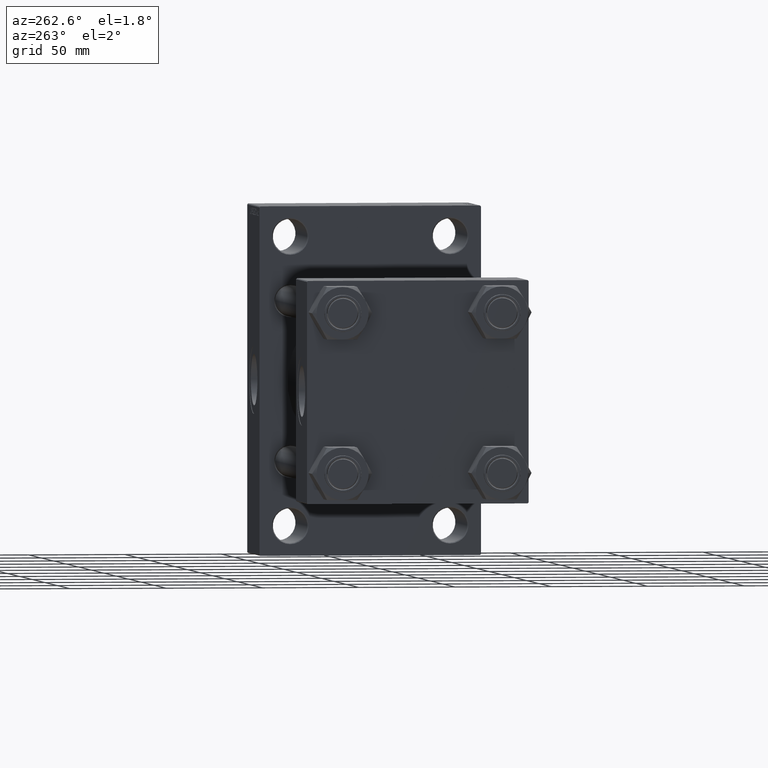
[diagram: clean part render]
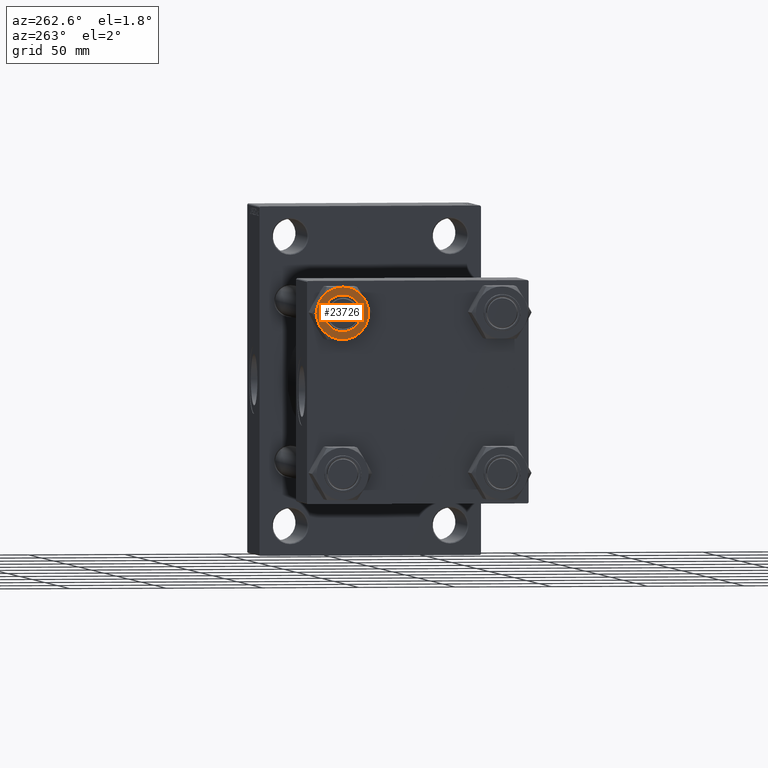
[diagram: same view with one face highlighted and labeled with its STEP entity id]
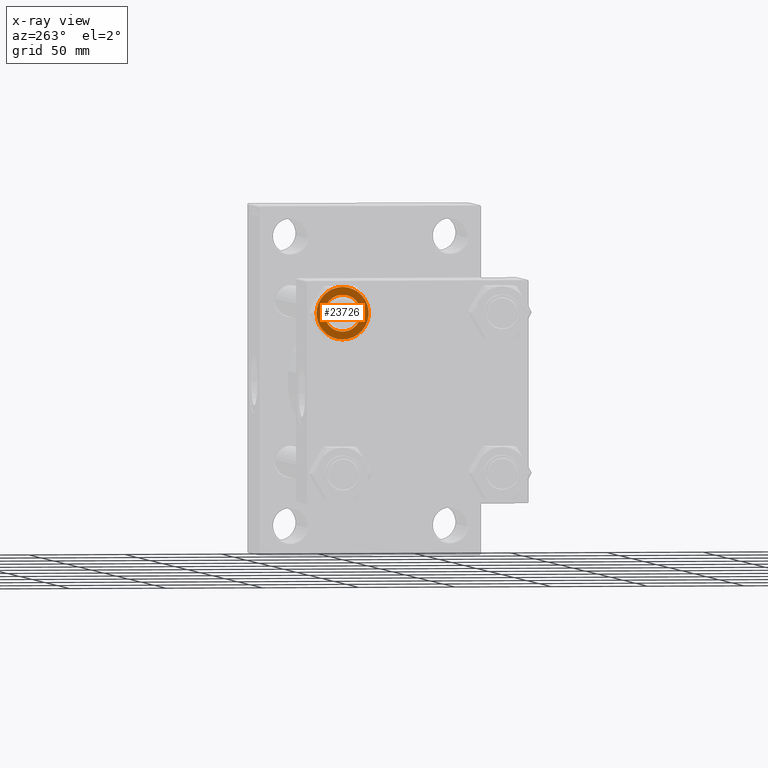
[diagram: x-ray of the same camera — body ghosted, the highlighted face saturated]
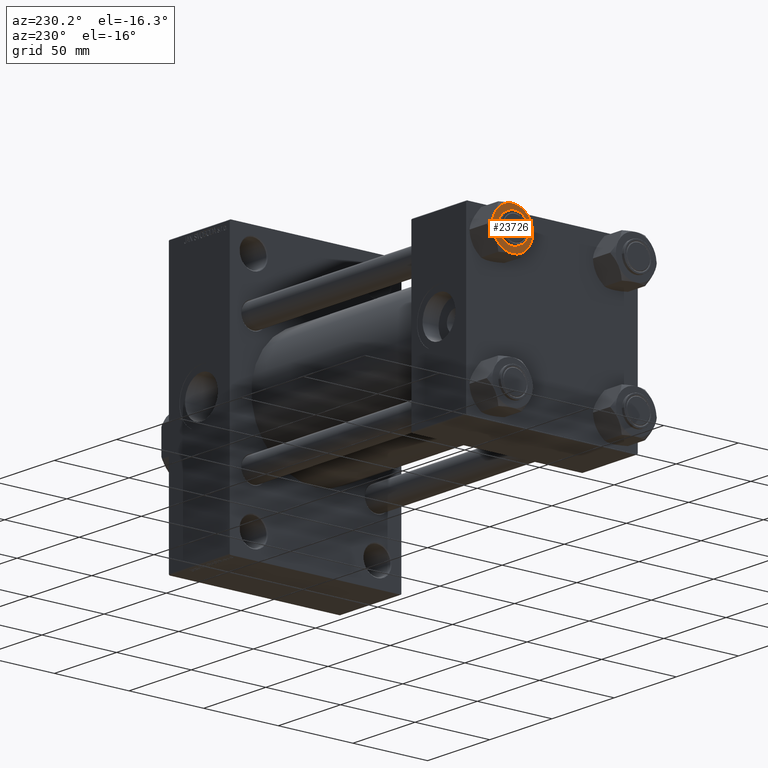
[diagram: same view with one face highlighted and labeled with its STEP entity id]
A machine part, auxiliary view. The second image highlights one B-rep face of the part: STEP entity #23726.
The next image is the same camera in x-ray: the body ghosted, the highlighted face saturated — about 0% of this face is hidden behind the body in this view.
A second angle (auxiliary view) of the same face is appended — the face is thin or edge-on in the first view.
In plain terms, the highlighted planar face has unit normal (1, 0, 0).
Its self-contained STEP definition (entity closure, byte-faithful):
#627 = CIRCLE ( 'NONE', #31573, 13.52731680711293727 ) ;
#777 = DIRECTION ( 'NONE',  ( -1.000000000000000000, 0.000000000000000000, 0.000000000000000000 ) ) ;
#1016 = EDGE_CURVE ( 'NONE', #26608, #1909, #40636, .T. ) ;
#1672 = ORIENTED_EDGE ( 'NONE', *, *, #39224, .F. ) ;
#1712 = VERTEX_POINT ( 'NONE', #45258 ) ;
#1909 = VERTEX_POINT ( 'NONE', #2358 ) ;
#2307 = CARTESIAN_POINT ( 'NONE',  ( 0.000000000000000000, 0.000000000000000000, 0.000000000000000000 ) ) ;
#2358 = CARTESIAN_POINT ( 'NONE',  ( -11.71500000000000874, -6.763658403556459753, 0.000000000000000000 ) ) ;
#2512 = CIRCLE ( 'NONE', #24942, 13.52731680711293727 ) ;
#2837 = CARTESIAN_POINT ( 'NONE',  ( -1.502314598737160017E-15, 13.52731680711293727, 0.000000000000000000 ) ) ;
#3008 = AXIS2_PLACEMENT_3D ( 'NONE', #19177, #19418, #777 ) ;
#3323 = CARTESIAN_POINT ( 'NONE',  ( 0.000000000000000000, 0.000000000000000000, 0.000000000000000000 ) ) ;
#3395 = EDGE_CURVE ( 'NONE', #38280, #1712, #26024, .T. ) ;
#3640 = AXIS2_PLACEMENT_3D ( 'NONE', #45452, #12277, #41818 ) ;
#3699 = AXIS2_PLACEMENT_3D ( 'NONE', #27950, #29626, #21160 ) ;
#4208 = AXIS2_PLACEMENT_3D ( 'NONE', #22141, #36942, #18525 ) ;
#4371 = ORIENTED_EDGE ( 'NONE', *, *, #11609, .F. ) ;
#5560 = CARTESIAN_POINT ( 'NONE',  ( 0.000000000000000000, 0.000000000000000000, 0.000000000000000000 ) ) ;
#7023 = CARTESIAN_POINT ( 'NONE',  ( 13.52731680711293727, 0.000000000000000000, 0.000000000000000000 ) ) ;
#7979 = VERTEX_POINT ( 'NONE', #44545 ) ;
#8413 = AXIS2_PLACEMENT_3D ( 'NONE', #2307, #47339, #39127 ) ;
#9207 = FACE_OUTER_BOUND ( 'NONE', #27499, .T. ) ;
#9687 = EDGE_CURVE ( 'NONE', #23565, #17484, #627, .T. ) ;
#10123 = EDGE_LOOP ( 'NONE', ( #16457, #27343 ) ) ;
#11609 = EDGE_CURVE ( 'NONE', #1712, #26608, #32399, .T. ) ;
#11998 = ORIENTED_EDGE ( 'NONE', *, *, #23335, .T. ) ;
#12277 = DIRECTION ( 'NONE',  ( 0.000000000000000000, -0.000000000000000000, -1.000000000000000000 ) ) ;
#12785 = VERTEX_POINT ( 'NONE', #23725 ) ;
#13306 = PLANE ( 'NONE',  #30044 ) ;
#14452 = ORIENTED_EDGE ( 'NONE', *, *, #36723, .F. ) ;
#14478 = DIRECTION ( 'NONE',  ( 0.000000000000000000, -0.000000000000000000, -1.000000000000000000 ) ) ;
#16457 = ORIENTED_EDGE ( 'NONE', *, *, #42931, .F. ) ;
#16697 = DIRECTION ( 'NONE',  ( -1.000000000000000000, 0.000000000000000000, -0.000000000000000000 ) ) ;
#17262 = DIRECTION ( 'NONE',  ( 0.000000000000000000, -0.000000000000000000, -1.000000000000000000 ) ) ;
#17484 = VERTEX_POINT ( 'NONE', #2837 ) ;
#18525 = DIRECTION ( 'NONE',  ( 1.000000000000000000, 0.000000000000000000, 0.000000000000000000 ) ) ;
#19177 = CARTESIAN_POINT ( 'NONE',  ( 0.000000000000000000, 0.000000000000000000, 0.000000000000000000 ) ) ;
#19225 = CIRCLE ( 'NONE', #8413, 13.52731680711293727 ) ;
#19344 = ORIENTED_EDGE ( 'NONE', *, *, #9687, .F. ) ;
#19418 = DIRECTION ( 'NONE',  ( 0.000000000000000000, -0.000000000000000000, -1.000000000000000000 ) ) ;
#19469 = CARTESIAN_POINT ( 'NONE',  ( -11.71500000000000341, 6.763658403556467746, 0.000000000000000000 ) ) ;
#19857 = VERTEX_POINT ( 'NONE', #38186 ) ;
#21001 = DIRECTION ( 'NONE',  ( -1.000000000000000000, 0.000000000000000000, 0.000000000000000000 ) ) ;
#21160 = DIRECTION ( 'NONE',  ( 1.000000000000000000, 0.000000000000000000, 0.000000000000000000 ) ) ;
#21221 = EDGE_CURVE ( 'NONE', #19857, #7979, #31534, .T. ) ;
#22141 = CARTESIAN_POINT ( 'NONE',  ( 0.000000000000000000, 0.000000000000000000, 0.000000000000000000 ) ) ;
#22355 = DIRECTION ( 'NONE',  ( 0.000000000000000000, -0.000000000000000000, -1.000000000000000000 ) ) ;
#23335 = EDGE_CURVE ( 'NONE', #12785, #17484, #19225, .T. ) ;
#23565 = VERTEX_POINT ( 'NONE', #19469 ) ;
#23725 = CARTESIAN_POINT ( 'NONE',  ( 11.71500000000000519, 6.763658403556469523, 0.000000000000000000 ) ) ;
#23726 = ADVANCED_FACE ( 'NONE', ( #42612, #9207 ), #13306, .F. ) ;
#24425 = DIRECTION ( 'NONE',  ( 0.000000000000000000, 0.000000000000000000, -1.000000000000000000 ) ) ;
#24942 = AXIS2_PLACEMENT_3D ( 'NONE', #3323, #14478, #21001 ) ;
#25734 = AXIS2_PLACEMENT_3D ( 'NONE', #26768, #37940, #26300 ) ;
#26024 = CIRCLE ( 'NONE', #3640, 13.52731680711293727 ) ;
#26300 = DIRECTION ( 'NONE',  ( -1.000000000000000000, 0.000000000000000000, 0.000000000000000000 ) ) ;
#26608 = VERTEX_POINT ( 'NONE', #40008 ) ;
#26768 = CARTESIAN_POINT ( 'NONE',  ( 0.000000000000000000, 0.000000000000000000, 0.000000000000000000 ) ) ;
#27343 = ORIENTED_EDGE ( 'NONE', *, *, #21221, .F. ) ;
#27499 = EDGE_LOOP ( 'NONE', ( #19344, #1672, #29992, #4371, #35342, #14452, #11998 ) ) ;
#27666 = CARTESIAN_POINT ( 'NONE',  ( 0.000000000000000000, 0.000000000000000000, 0.000000000000000000 ) ) ;
#27950 = CARTESIAN_POINT ( 'NONE',  ( 0.000000000000000000, 0.000000000000000000, 0.000000000000000000 ) ) ;
#29084 = AXIS2_PLACEMENT_3D ( 'NONE', #40781, #22355, #30115 ) ;
#29626 = DIRECTION ( 'NONE',  ( 0.000000000000000000, 0.000000000000000000, 1.000000000000000000 ) ) ;
#29992 = ORIENTED_EDGE ( 'NONE', *, *, #1016, .F. ) ;
#30044 = AXIS2_PLACEMENT_3D ( 'NONE', #5560, #24425, #16697 ) ;
#30115 = DIRECTION ( 'NONE',  ( -1.000000000000000000, 0.000000000000000000, 0.000000000000000000 ) ) ;
#31534 = CIRCLE ( 'NONE', #3699, 9.500000000000000000 ) ;
#31573 = AXIS2_PLACEMENT_3D ( 'NONE', #27666, #17262, #46795 ) ;
#32399 = CIRCLE ( 'NONE', #3008, 13.52731680711293727 ) ;
#35084 = CIRCLE ( 'NONE', #4208, 9.500000000000000000 ) ;
#35342 = ORIENTED_EDGE ( 'NONE', *, *, #3395, .F. ) ;
#36723 = EDGE_CURVE ( 'NONE', #12785, #38280, #42757, .T. ) ;
#36942 = DIRECTION ( 'NONE',  ( 0.000000000000000000, 0.000000000000000000, 1.000000000000000000 ) ) ;
#37940 = DIRECTION ( 'NONE',  ( 0.000000000000000000, -0.000000000000000000, -1.000000000000000000 ) ) ;
#38186 = CARTESIAN_POINT ( 'NONE',  ( 9.500000000000000000, 1.163414459189985485E-15, 0.000000000000000000 ) ) ;
#38280 = VERTEX_POINT ( 'NONE', #7023 ) ;
#39127 = DIRECTION ( 'NONE',  ( 1.000000000000000000, 0.000000000000000000, 0.000000000000000000 ) ) ;
#39224 = EDGE_CURVE ( 'NONE', #1909, #23565, #2512, .T. ) ;
#40008 = CARTESIAN_POINT ( 'NONE',  ( 3.004629197474319246E-15, -13.52731680711293727, 0.000000000000000000 ) ) ;
#40636 = CIRCLE ( 'NONE', #29084, 13.52731680711293727 ) ;
#40781 = CARTESIAN_POINT ( 'NONE',  ( 0.000000000000000000, 0.000000000000000000, 0.000000000000000000 ) ) ;
#41818 = DIRECTION ( 'NONE',  ( -1.000000000000000000, 0.000000000000000000, 0.000000000000000000 ) ) ;
#42612 = FACE_BOUND ( 'NONE', #10123, .T. ) ;
#42757 = CIRCLE ( 'NONE', #25734, 13.52731680711293727 ) ;
#42931 = EDGE_CURVE ( 'NONE', #7979, #19857, #35084, .T. ) ;
#44545 = CARTESIAN_POINT ( 'NONE',  ( -9.500000000000000000, 0.000000000000000000, 0.000000000000000000 ) ) ;
#45258 = CARTESIAN_POINT ( 'NONE',  ( 11.71500000000000341, -6.763658403556471299, 0.000000000000000000 ) ) ;
#45452 = CARTESIAN_POINT ( 'NONE',  ( 0.000000000000000000, 0.000000000000000000, 0.000000000000000000 ) ) ;
#46795 = DIRECTION ( 'NONE',  ( -1.000000000000000000, 0.000000000000000000, 0.000000000000000000 ) ) ;
#47339 = DIRECTION ( 'NONE',  ( 0.000000000000000000, 0.000000000000000000, 1.000000000000000000 ) ) ;